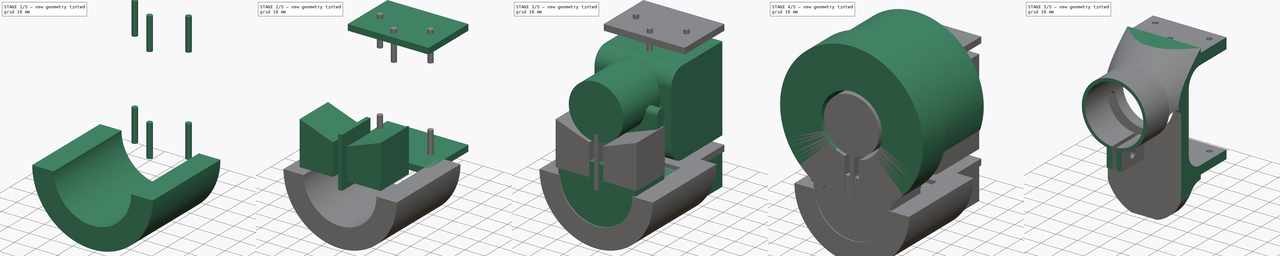
[diagram: build sequence overview — one tinted view per stage of 5, left to right]
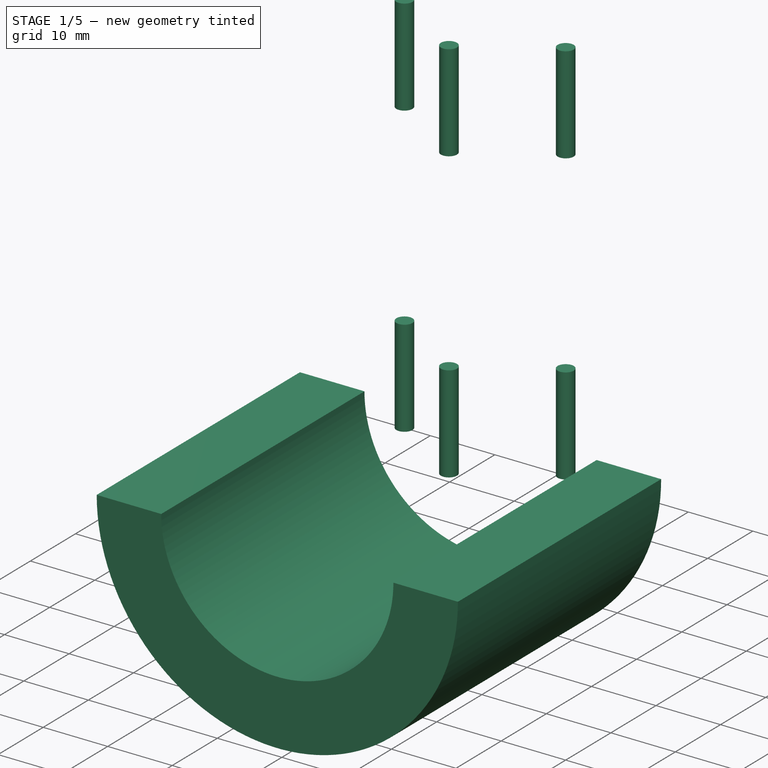
[diagram: stage 1 of 5 — iso view after this stage's code; geometry added in this stage tinted green]
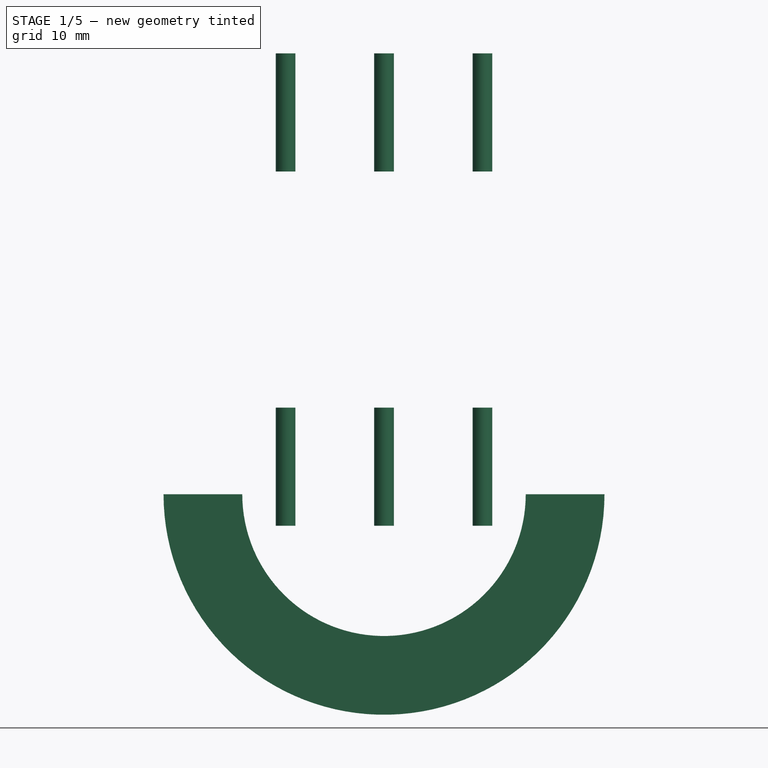
[diagram: stage 1 of 5 — front view after this stage's code; geometry added in this stage tinted green]
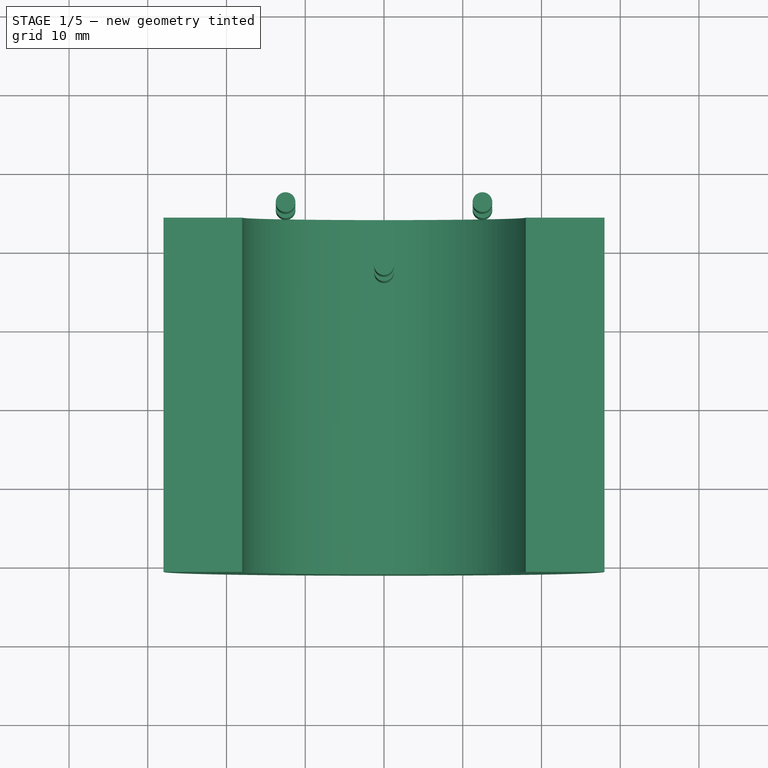
[diagram: stage 1 of 5 — top view after this stage's code; geometry added in this stage tinted green]
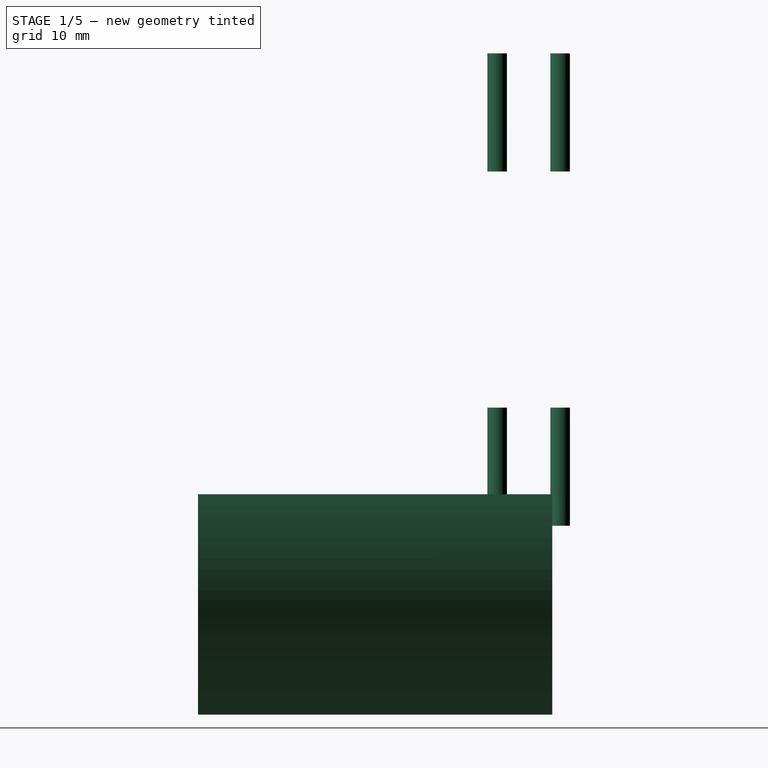
[diagram: stage 1 of 5 — right view after this stage's code; geometry added in this stage tinted green]
FCSTD DOCUMENT  (FreeCAD 0.16R6698 (Git))
Label: body-bracket-light
License: All rights reserved
LicenseURL: http://en.wikipedia.org/wiki/All_rights_reserved
objects: Sketcher::SketchObject×11, Part::Extrusion×7, Part::Sweep×3, Part::MultiFuse×2, Part::Cut×2, Part::Box×1
note: 26 computed .brp shape members not serialized (recipe doc carries the construction recipe); baked Part::Feature solids carry a one-line shape summary decoded from their .brp

FEATURE [Sketcher::SketchObject] Sketch021
  sketch-geometry (6):
    g0: Circle CenterX=-12.5 CenterY=45 CenterZ=0 NormalX=0 NormalY=0 NormalZ=1 Radius=1.25
    g1: Circle CenterX=12.5 CenterY=45 CenterZ=0 NormalX=0 NormalY=0 NormalZ=1 Radius=1.25
    g2: Circle CenterX=0 CenterY=37 CenterZ=0 NormalX=0 NormalY=0 NormalZ=1 Radius=1.25
    g3: LineSegment [constr] StartX=-12.5 StartY=45 StartZ=0 EndX=0 EndY=37 EndZ=0
    g4: LineSegment [constr] StartX=0 StartY=37 StartZ=0 EndX=12.5 EndY=45 EndZ=0
    g5: LineSegment [constr] StartX=12.5 StartY=45 StartZ=0 EndX=-12.5 EndY=45 EndZ=0
  constraints (15):
    c: Radius(g2) = 1.25
    c: PointOnObject(g2,g-2)
    c: Coincident(g3,g0)
    c: Coincident(g3,g2)
    c: Coincident(g3,g4)
    c: Coincident(g4,g1)
    c: Coincident(g4,g5)
    c: Horizontal(g5)
    c: Coincident(g5,g0)
    c: Equal(g3,g4)
    c: DistanceY(g2,g1) = 8
    c: DistanceX(g0,g1) = 25
    c: DistanceY(g-1,g1) = 45
    c: Equal(g0,g2)
    c: Equal(g2,g1)
FEATURE [Part::Extrusion] Extrude005
  Base = -> Sketch021
  Dir = (0,0,15)
  Placement = pos=(0,0,13) rot=(0,0,1;0rad)
  Solid = true
FEATURE [Part::Extrusion] Extrude006
  Base = -> Sketch021
  Dir = (0,0,15)
  Placement = pos=(0,0,58) rot=(0,0,1;0rad)
  Solid = true
FEATURE [Sketcher::SketchObject] Sketch022
  Placement = pos=(0,0,0) rot=(1,0,0;1.5708rad)
  sketch-geometry (2):
    g0: ArcOfCircle CenterX=0 CenterY=17 CenterZ=0 NormalX=0 NormalY=0 NormalZ=1 Radius=18 StartAngle=3.14159 EndAngle=6.28319
    g1: LineSegment [constr] StartX=-18 StartY=17 StartZ=0 EndX=18 EndY=17 EndZ=0
  constraints (7):
    c: PointOnObject(g0,g-2)
    c: Coincident(g1,g0)
    c: Coincident(g1,g0)
    c: Horizontal(g1)
    c: Distance(g1) = 36
    c: DistanceY(g-1,g0) = 17
    c: PointOnObject(g0,g1)
FEATURE [Sketcher::SketchObject] Sketch023
  Placement = pos=(0,0,0) rot=(0.57735,0.57735,0.57735;2.0944rad)
  sketch-geometry (4):
    g0: LineSegment StartX=-1 StartY=-1 StartZ=0 EndX=44 EndY=-1 EndZ=0
    g1: LineSegment StartX=44 StartY=-1 StartZ=0 EndX=44 EndY=-11 EndZ=0
    g2: LineSegment StartX=44 StartY=-11 StartZ=0 EndX=-1 EndY=-11 EndZ=0
    g3: LineSegment StartX=-1 StartY=-11 StartZ=0 EndX=-1 EndY=-1 EndZ=0
  constraints (12):
    c: Coincident(g0,g1)
    c: Coincident(g1,g2)
    c: Coincident(g2,g3)
    c: Coincident(g3,g0)
    c: Horizontal(g0)
    c: Horizontal(g2)
    c: Vertical(g1)
    c: Vertical(g3)
    c: Distance(g1) = 10
    c: Distance(g2) = 45
    c: DistanceX(g0,g-1) = 1
    c: DistanceY(g0,g-1) = 1
FEATURE [Part::Sweep] Sweep002
  Frenet = false
  Sections = -> [Sketch023]
  Solid = true
  Spine = -> Sketch022 [Edge1]
  Transition = 1
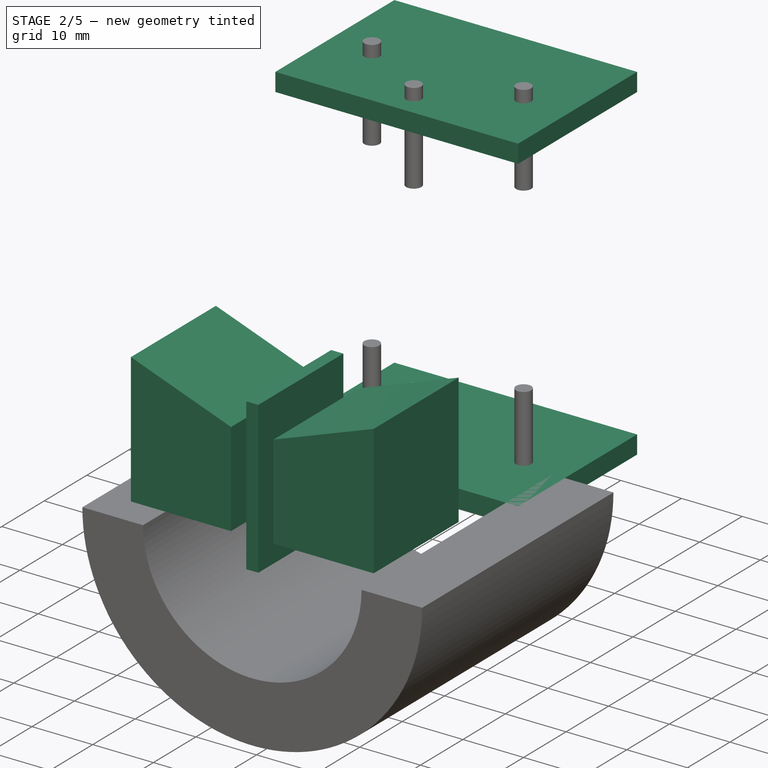
[diagram: stage 2 of 5 — iso view after this stage's code; geometry added in this stage tinted green]
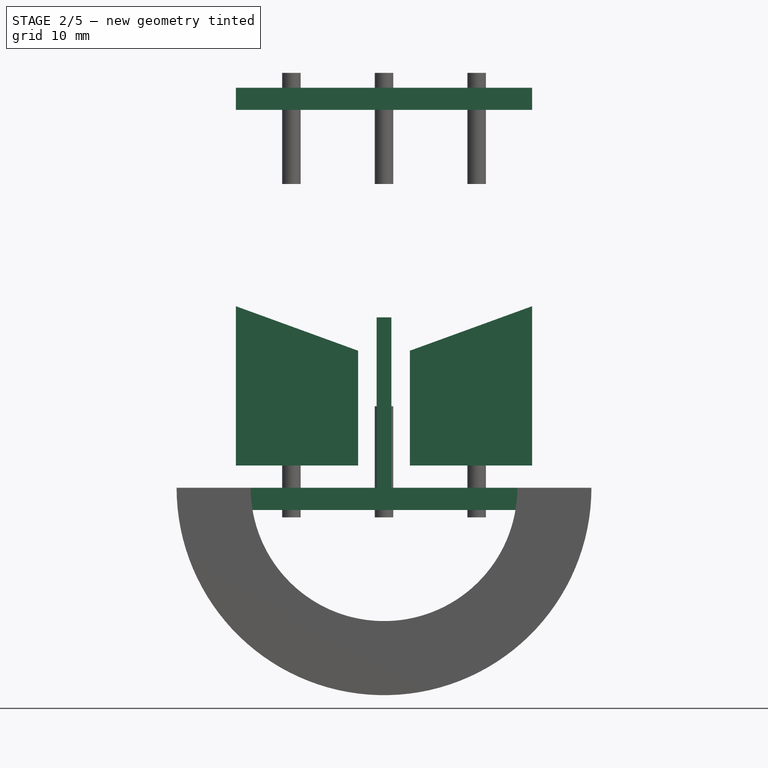
[diagram: stage 2 of 5 — front view after this stage's code; geometry added in this stage tinted green]
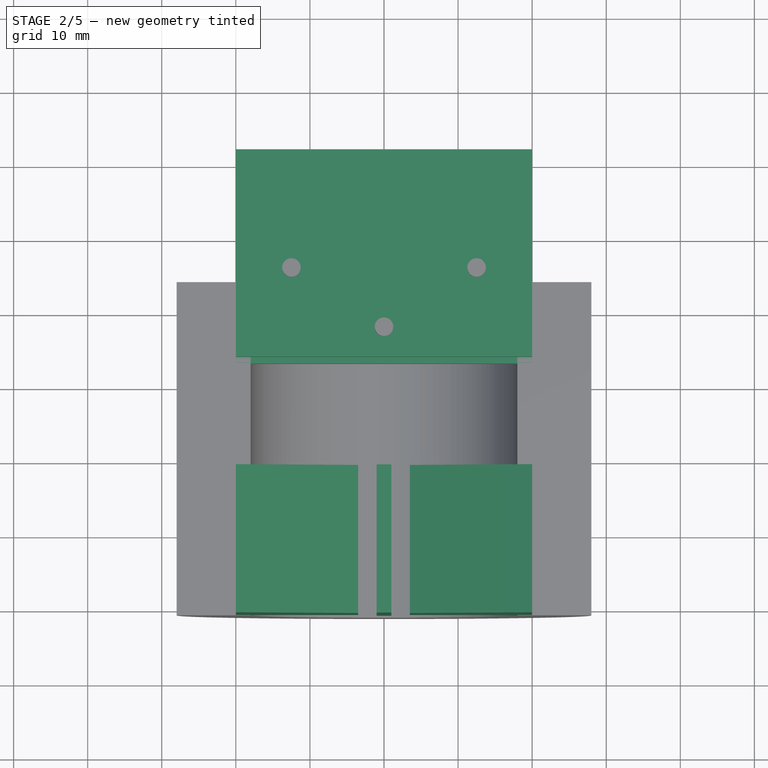
[diagram: stage 2 of 5 — top view after this stage's code; geometry added in this stage tinted green]
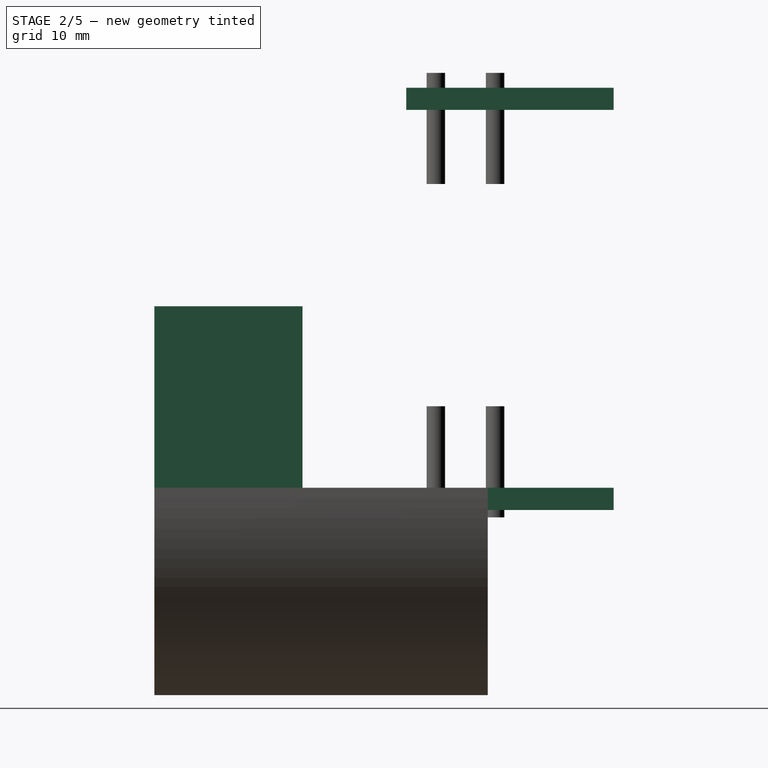
[diagram: stage 2 of 5 — right view after this stage's code; geometry added in this stage tinted green]
FEATURE [Sketcher::SketchObject] Sketch017  label="arc-ext001"
  Placement = pos=(0,0,0) rot=(1,0,0;1.5708rad)
  sketch-geometry (12):
    g0: LineSegment StartX=3.5 StartY=35.5 StartZ=0 EndX=20 EndY=41.5055 EndZ=0
    g1: LineSegment StartX=20 StartY=41.5055 StartZ=0 EndX=20 EndY=20 EndZ=0
    g2: LineSegment StartX=20 StartY=20 StartZ=0 EndX=3.5 EndY=20 EndZ=0
    g3: LineSegment StartX=3.5 StartY=20 StartZ=0 EndX=3.5 EndY=35.5 EndZ=0
    g4: LineSegment StartX=-3.5 StartY=35.5 StartZ=0 EndX=-20 EndY=41.5055 EndZ=0
    g5: LineSegment StartX=-20 StartY=41.5055 StartZ=0 EndX=-20 EndY=20 EndZ=0
    g6: LineSegment StartX=-20 StartY=20 StartZ=0 EndX=-3.5 EndY=20 EndZ=0
    g7: LineSegment StartX=-3.5 StartY=20 StartZ=0 EndX=-3.5 EndY=35.5 EndZ=0
    g8: LineSegment StartX=-1 StartY=40 StartZ=0 EndX=1 EndY=40 EndZ=0
    g9: LineSegment StartX=1 StartY=40 StartZ=0 EndX=1 EndY=15 EndZ=0
    g10: LineSegment StartX=1 StartY=15 StartZ=0 EndX=-1 EndY=15 EndZ=0
    g11: LineSegment StartX=-1 StartY=15 StartZ=0 EndX=-1 EndY=40 EndZ=0
  constraints (35):
    c: Coincident(g0,g1)
    c: Coincident(g1,g2)
    c: Coincident(g2,g3)
    c: Horizontal(g2)
    c: Vertical(g1)
    c: Vertical(g3)
    c: DistanceX(g-1,g2) = 3.5
    c: DistanceX(g-1,g1) = 20
    c: DistanceY(g1) = 20
    c: Coincident(g4,g5)
    c: Coincident(g5,g6)
    c: Coincident(g6,g7)
    c: Horizontal(g6)
    c: Vertical(g5)
    c: Vertical(g7)
    c: Symmetric(g2,g6,g-2)
    c: Equal(g6,g2)
    c: Equal(g5,g1)
    c: Coincident(g8,g9)
    c: Coincident(g9,g10)
    c: Coincident(g10,g11)
    c: Coincident(g11,g8)
    c: Horizontal(g8)
    c: Horizontal(g10)
    c: Vertical(g9)
    c: Vertical(g11)
    c: Symmetric(g9,g10,g-2)
    c: DistanceX(g9,g2) = 2.5
    c: DistanceY(g-1,g9) = 15
    c: DistanceY(g-1,g8) = 40
    c: Coincident(g0,g3)
    c: Coincident(g4,g7)
    c: Angle(g3,g0) = 1.91986
    c: DistanceY(g-1,g0) = 35.5
    c: Equal(g4,g0)
FEATURE [Part::Extrusion] Extrude002  label="arc-ext"
  Base = -> Sketch017
  Dir = (0,20,0)
  Placement = pos=(0,-1,0) rot=(0,0,1;0rad)
  Solid = true
FEATURE [Sketcher::SketchObject] Sketch020
  sketch-geometry (4):
    g0: LineSegment StartX=-20 StartY=61 StartZ=0 EndX=20 EndY=61 EndZ=0
    g1: LineSegment StartX=20 StartY=61 StartZ=0 EndX=20 EndY=33 EndZ=0
    g2: LineSegment StartX=20 StartY=33 StartZ=0 EndX=-20 EndY=33 EndZ=0
    g3: LineSegment StartX=-20 StartY=33 StartZ=0 EndX=-20 EndY=61 EndZ=0
  constraints (12):
    c: Coincident(g0,g1)
    c: Coincident(g1,g2)
    c: Coincident(g2,g3)
    c: Coincident(g3,g0)
    c: Horizontal(g0)
    c: Horizontal(g2)
    c: Vertical(g1)
    c: Vertical(g3)
    c: DistanceY(g-1,g1) = 33
    c: Symmetric(g1,g2,g-2)
    c: DistanceY(g-1,g0) = 61
    c: DistanceX(g0,g0) = 40
FEATURE [Part::Extrusion] Extrude003
  Base = -> Sketch020
  Dir = (0,0,3)
  Placement = pos=(0,0,68) rot=(0,0,1;0rad)
  Solid = true
FEATURE [Part::Extrusion] Extrude004
  Base = -> Sketch020
  Dir = (0,0,3)
  Placement = pos=(0,0,14) rot=(0,0,1;0rad)
  Solid = true
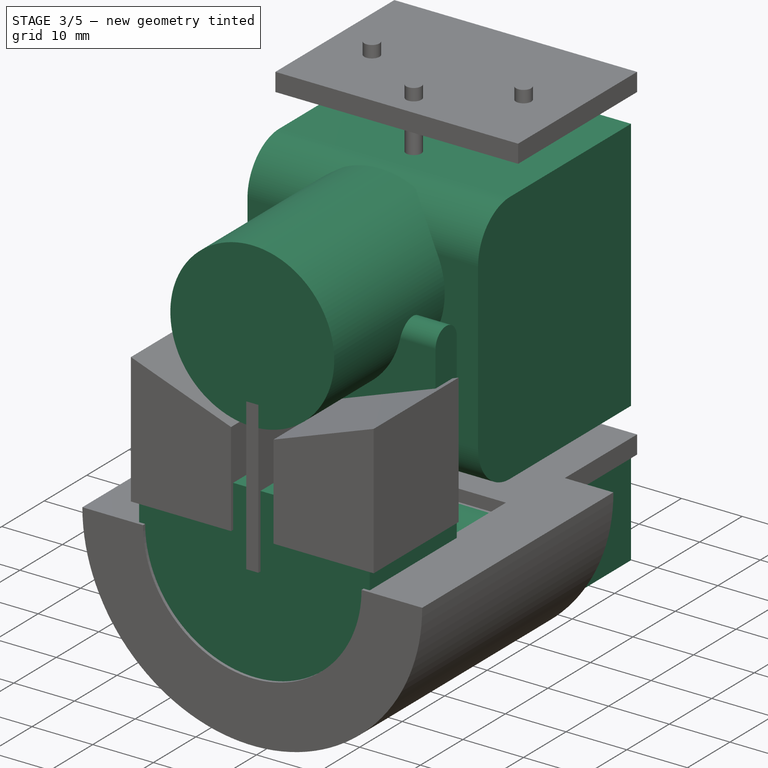
[diagram: stage 3 of 5 — iso view after this stage's code; geometry added in this stage tinted green]
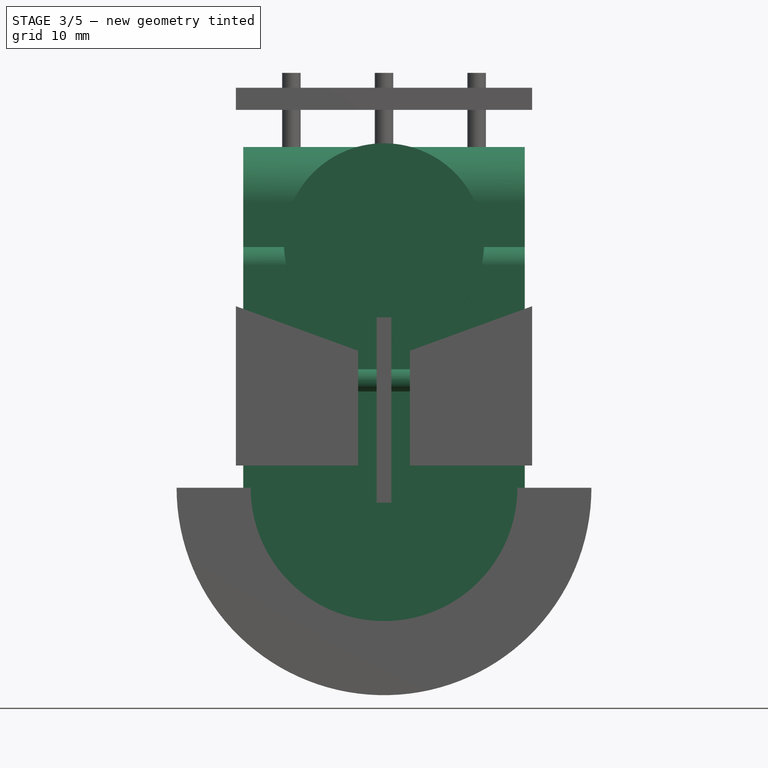
[diagram: stage 3 of 5 — front view after this stage's code; geometry added in this stage tinted green]
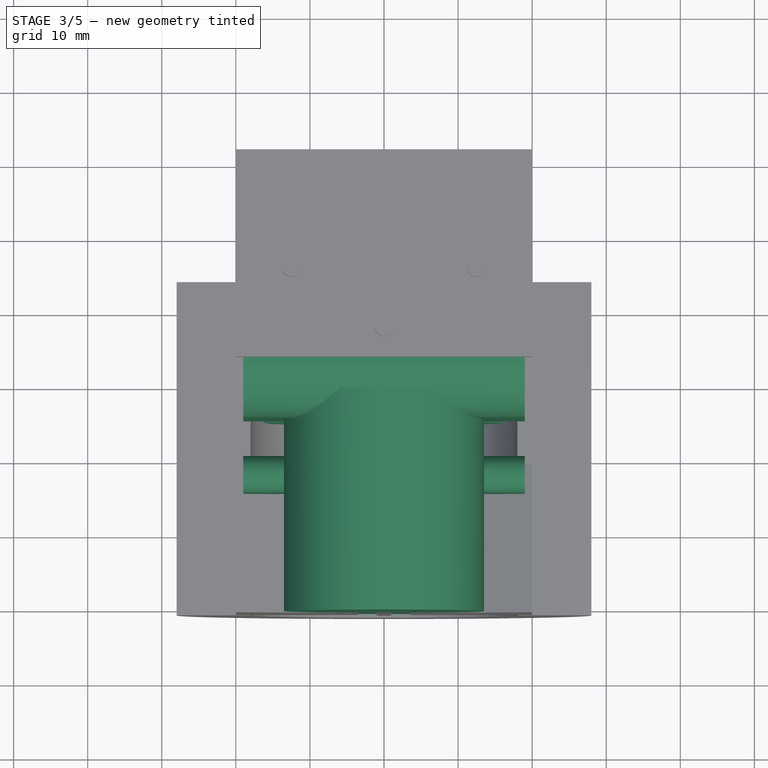
[diagram: stage 3 of 5 — top view after this stage's code; geometry added in this stage tinted green]
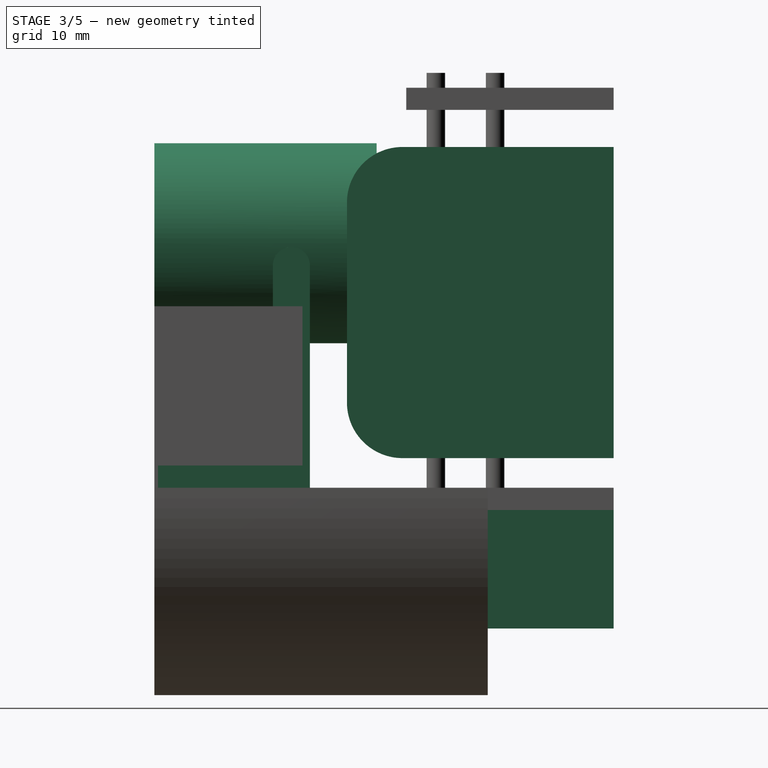
[diagram: stage 3 of 5 — right view after this stage's code; geometry added in this stage tinted green]
FEATURE [Sketcher::SketchObject] Sketch  label="side-cut"
  Placement = pos=(0,0,0) rot=(0.57735,0.57735,0.57735;2.0944rad)
  sketch-geometry (21):
    g0: LineSegment StartX=61 StartY=63 StartZ=0 EndX=32.5 EndY=63 EndZ=0
    g1: LineSegment StartX=25 StartY=55.5 StartZ=0 EndX=25 EndY=28.5 EndZ=0
    g2: LineSegment StartX=32.5 StartY=21 StartZ=0 EndX=61 EndY=21 EndZ=0
    g3: LineSegment StartX=61 StartY=21 StartZ=0 EndX=61 EndY=63 EndZ=0
    g4: LineSegment StartX=61 StartY=15 StartZ=0 EndX=32.5 EndY=15 EndZ=0
    g5: LineSegment StartX=25 StartY=7.5 StartZ=0 EndX=25 EndY=-2 EndZ=0
    g6: LineSegment StartX=25 StartY=-2 StartZ=0 EndX=61 EndY=-2 EndZ=0
    g7: LineSegment StartX=61 StartY=-2 StartZ=0 EndX=61 EndY=15 EndZ=0
    g8: ArcOfCircle CenterX=32.5 CenterY=7.5 CenterZ=0 NormalX=0 NormalY=0 NormalZ=1 Radius=7.5 StartAngle=1.5708 EndAngle=3.14159
    g9: ArcOfCircle CenterX=32.5 CenterY=55.5 CenterZ=0 NormalX=0 NormalY=0 NormalZ=1 Radius=7.5 StartAngle=1.5708 EndAngle=3.14159
    g10: ArcOfCircle CenterX=32.5 CenterY=28.5 CenterZ=0 NormalX=0 NormalY=0 NormalZ=1 Radius=7.5 StartAngle=3.14159 EndAngle=4.71239
    g11: LineSegment [constr] StartX=15 StartY=47 StartZ=0 EndX=20 EndY=47 EndZ=0
    g12: LineSegment StartX=20 StartY=47 StartZ=0 EndX=20 EndY=-2 EndZ=0
    g13: LineSegment StartX=20 StartY=-2 StartZ=0 EndX=-0.5 EndY=-2 EndZ=0
    g14: LineSegment StartX=-0.5 StartY=-2 StartZ=0 EndX=-0.5 EndY=27 EndZ=0
    g15: LineSegment StartX=-0.5 StartY=27 StartZ=0 EndX=15 EndY=27 EndZ=0
    g16: LineSegment StartX=15 StartY=27 StartZ=0 EndX=15 EndY=47 EndZ=0
    g17: ArcOfCircle CenterX=17.5 CenterY=47 CenterZ=0 NormalX=0 NormalY=0 NormalZ=1 Radius=2.5 StartAngle=0 EndAngle=3.14159
    g18: Circle CenterX=7.25 CenterY=31.5 CenterZ=0 NormalX=0 NormalY=0 NormalZ=1 Radius=1.5
    g19: LineSegment [constr] StartX=7.25 StartY=31.5 StartZ=0 EndX=15 EndY=27 EndZ=0
    g20: LineSegment [constr] StartX=7.25 StartY=31.5 StartZ=0 EndX=-0.5 EndY=27 EndZ=0
  constraints (58):
    c: Coincident(g2,g3)
    c: Coincident(g3,g0)
    c: Horizontal(g0)
    c: Horizontal(g2)
    c: Vertical(g1)
    c: Vertical(g3)
    c: Coincident(g5,g6)
    c: Coincident(g6,g7)
    c: Coincident(g7,g4)
    c: Horizontal(g4)
    c: Horizontal(g6)
    c: Vertical(g5)
    c: Vertical(g7)
    c: Tangent(g4,g8) = -1.5708
    c: Tangent(g5,g8) = -1.5708
    c: Tangent(g0,g9) = -1.5708
    c: Tangent(g1,g9) = -1.5708
    c: Tangent(g1,g10) = -1.5708
    c: Tangent(g2,g10) = -1.5708
    c: Radius(g8) = 7.5
    c: Equal(g8,g10)
    c: Equal(g10,g9)
    c: DistanceY(g-1,g4) = 15
    c: PointOnObject(g1,g5)
    c: Equal(g2,g4)
    c: DistanceX(g-1,g6) = 61
    c: DistanceY(g-1,g0) = 63
    c: DistanceY(g-1,g2) = 21
    c: DistanceY(g6,g-1) = 2
    c: Coincident(g11,g12)
    c: Coincident(g12,g13)
    c: Horizontal(g11)
    c: Horizontal(g13)
    c: Vertical(g12)
    c: PointOnObject(g12,g6)
    c: Vertical(g14)
    c: Coincident(g14,g15)
    c: Horizontal(g15)
    c: Coincident(g15,g16)
    c: Vertical(g16)
    c: DistanceX(g-1,g11) = 15
    c: Coincident(g16,g11)
    c: DistanceX(g13,g-1) = 0.5
    c: Coincident(g14,g13)
    c: DistanceY(g-1,g15) = 27
    c: DistanceY(g-1,g11) = 47
    c: PointOnObject(g17,g11)
    c: Coincident(g17,g11)
    c: Coincident(g17,g11)
    c: Radius(g18) = 1.5
    c: DistanceY(g14,g18) = 4.5
    c: Coincident(g19,g18)
    c: Coincident(g19,g15)
    c: Coincident(g20,g18)
    c: Coincident(g20,g14)
    c: Equal(g20,g19)
    c: Radius(g17) = 2.5
    c: DistanceX(g-1,g5) = 25
FEATURE [Part::Extrusion] Extrude  label="Extrude-side-cut"
  Base = -> Sketch
  Dir = (38,0,0)
  Placement = pos=(-19,0,0) rot=(0,0,1;0rad)
  Solid = true
FEATURE [Sketcher::SketchObject] Sketch016  label="tube-hole"
  Placement = pos=(0,0,0) rot=(1,0,0;1.5708rad)
  sketch-geometry (1):
    g0: Circle CenterX=0 CenterY=50 CenterZ=0 NormalX=0 NormalY=0 NormalZ=1 Radius=13.5
  constraints (3):
    c: PointOnObject(g0,g-2)
    c: Radius(g0) = 13.5
    c: DistanceY(g-1,g0) = 50
FEATURE [Part::Extrusion] Extrude001  label="Extrude-tube-hole"
  Base = -> Sketch016
  Dir = (0,30,0)
  Placement = pos=(0,-1,0) rot=(0,0,1;0rad)
  Solid = true
FEATURE [Part::MultiFuse] Fusion001
  Shapes = -> [Extrude,Extrude001,Extrude002,Extrude003,Extrude004,Extrude005,Extrude006,Sweep002]
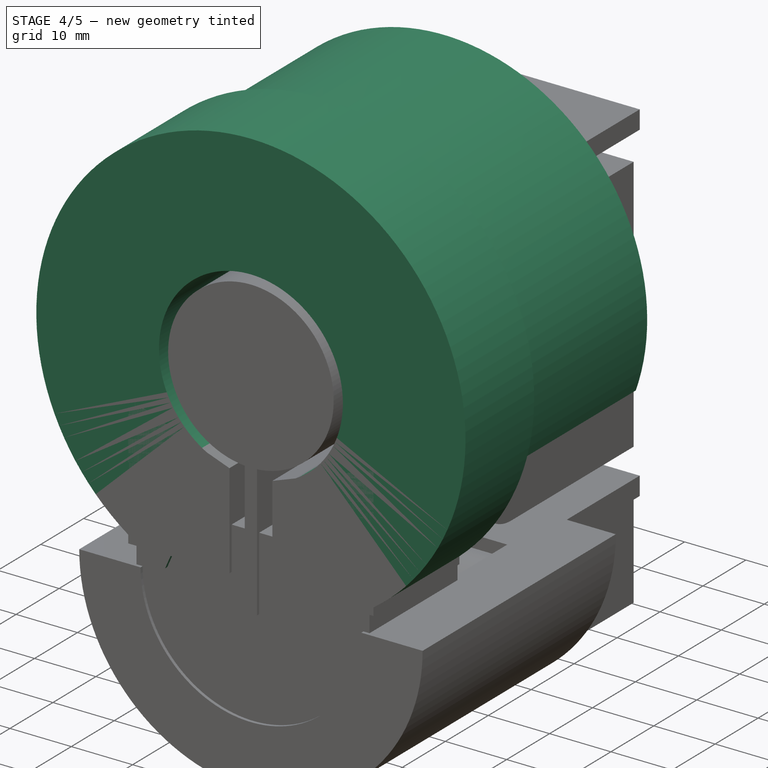
[diagram: stage 4 of 5 — iso view after this stage's code; geometry added in this stage tinted green]
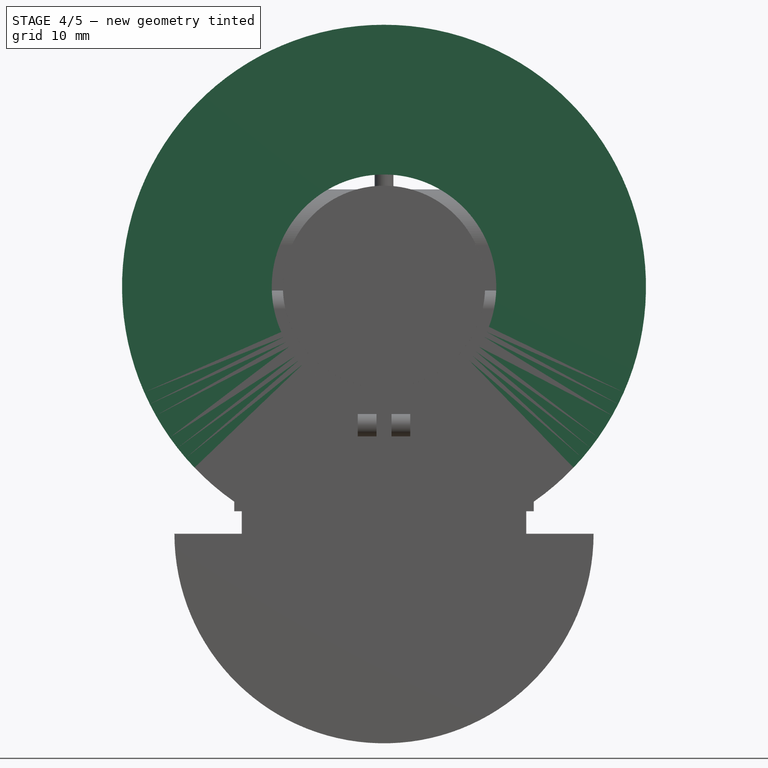
[diagram: stage 4 of 5 — front view after this stage's code; geometry added in this stage tinted green]
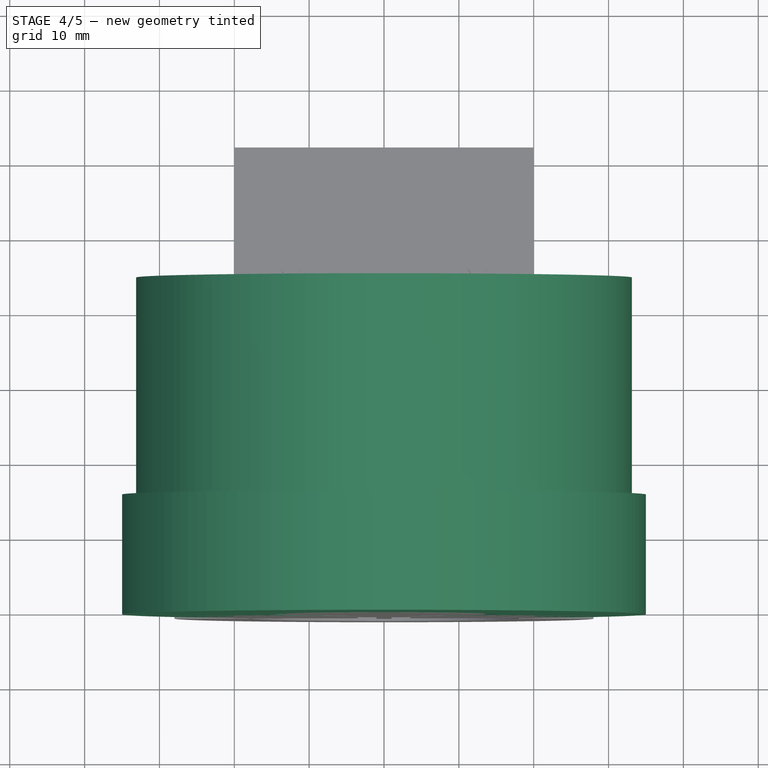
[diagram: stage 4 of 5 — top view after this stage's code; geometry added in this stage tinted green]
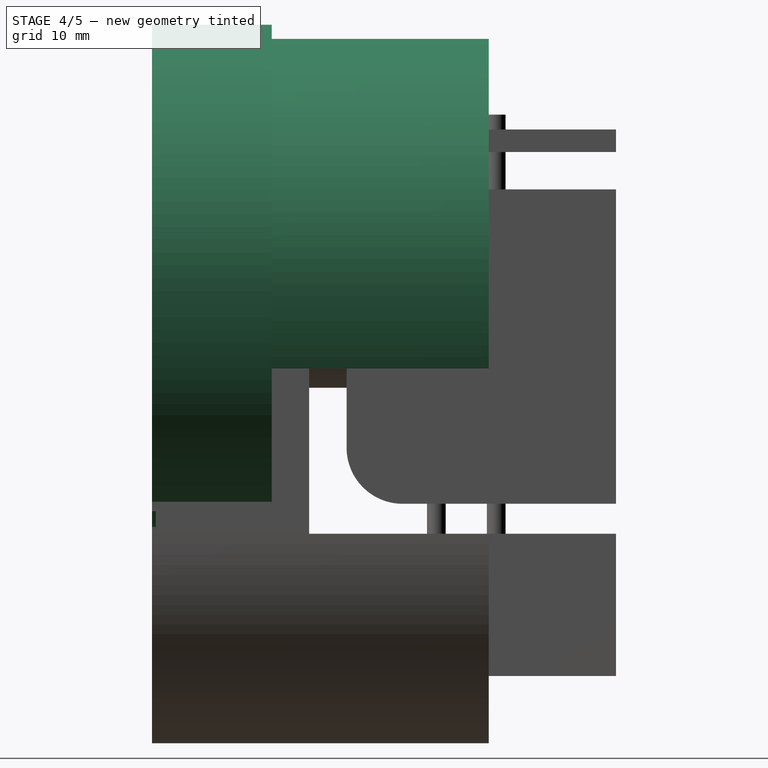
[diagram: stage 4 of 5 — right view after this stage's code; geometry added in this stage tinted green]
FEATURE [Sketcher::SketchObject] Sketch014  label="outer-tube-cut"
  Placement = pos=(0,-1,0) rot=(0.57735,0.57735,0.57735;2.0944rad)
  sketch-geometry (4):
    g0: LineSegment StartX=16 StartY=65 StartZ=0 EndX=0 EndY=65 EndZ=0
    g1: LineSegment StartX=0 StartY=65 StartZ=0 EndX=0 EndY=85 EndZ=0
    g2: LineSegment StartX=0 StartY=85 StartZ=0 EndX=16 EndY=85 EndZ=0
    g3: LineSegment StartX=16 StartY=65 StartZ=0 EndX=16 EndY=85 EndZ=0
  constraints (13):
    c: Coincident(g0,g1)
    c: Horizontal(g0)
    c: Vertical(g1)
    c: DistanceX(g0,g0) = 16
    c: DistanceY(g-1,g0) = 65
    c: PointOnObject(g0,g-2)
    c: PointOnObject(g2,g-2)
    c: Horizontal(g2)
    c: DistanceY(g0,g2) = 20
    c: Coincident(g1,g2)
    c: Coincident(g3,g0)
    c: Vertical(g3)
    c: Coincident(g2,g3)
FEATURE [Sketcher::SketchObject] Sketch015  label="outer-tube-cut-path"
  Placement = pos=(0,0,0) rot=(1,0,0;1.5708rad)
  sketch-geometry (3):
    g0: ArcOfCircle CenterX=0 CenterY=50 CenterZ=0 NormalX=0 NormalY=0 NormalZ=1 Radius=10 StartAngle=5.12391 EndAngle=10.5841
    g1: LineSegment [constr] StartX=-4 StartY=40.8348 StartZ=0 EndX=4 EndY=40.8348 EndZ=0
    g2: GeomPoint [constr] X=0 Y=50 Z=0
  constraints (8):
    c: Radius(g0) = 10
    c: Coincident(g1,g0)
    c: Horizontal(g1)
    c: Distance(g1) = 8
    c: Coincident(g0,g1)
    c: DistanceY(g-1,g2) = 50
    c: PointOnObject(g2,g-2)
    c: Coincident(g0,g2)
FEATURE [Part::Sweep] Sweep
  Frenet = false
  Sections = -> [Sketch014]
  Solid = true
  Spine = -> Sketch015 [Edge1]
  Transition = 1
FEATURE [Sketcher::SketchObject] Sketch018  label="body-round-cut"
  Placement = pos=(0,-1,0) rot=(0.57735,0.57735,0.57735;2.0944rad)
  sketch-geometry (3):
    g0: LineSegment StartX=16 StartY=65 StartZ=0 EndX=16 EndY=83.1212 EndZ=0
    g1: LineSegment StartX=16 StartY=65 StartZ=0 EndX=45 EndY=83.1212 EndZ=0
    g2: LineSegment StartX=16 StartY=83.1212 StartZ=0 EndX=45 EndY=83.1212 EndZ=0
  constraints (9):
    c: Coincident(g1,g0)
    c: Coincident(g2,g0)
    c: Coincident(g2,g1)
    c: Angle(g1,g0) = 1.01229
    c: DistanceY(g-1,g0) = 65
    c: Vertical(g0)
    c: DistanceX(g-1,g0) = 16
    c: Horizontal(g2)
    c: DistanceX(g-1,g1) = 45
FEATURE [Sketcher::SketchObject] Sketch019  label="body-round-cut-path"
  Placement = pos=(0,0,0) rot=(1,0,0;1.5708rad)
  sketch-geometry (3):
    g0: ArcOfCircle CenterX=0 CenterY=50 CenterZ=0 NormalX=0 NormalY=0 NormalZ=1 Radius=10 StartAngle=5.94688 EndAngle=9.76108
    g1: LineSegment [constr] StartX=-9.43981 StartY=46.7 StartZ=0 EndX=9.43981 EndY=46.7 EndZ=0
    g2: GeomPoint [constr] X=0 Y=50 Z=0
  constraints (8):
    c: Radius(g0) = 10
    c: Coincident(g1,g0)
    c: Horizontal(g1)
    c: Coincident(g0,g1)
    c: DistanceY(g-1,g2) = 50
    c: PointOnObject(g2,g-2)
    c: Coincident(g0,g2)
    c: DistanceY(g0,g0) = 3.3
FEATURE [Part::Sweep] Sweep001
  Frenet = false
  Sections = -> [Sketch018]
  Solid = true
  Spine = -> Sketch019 [Edge1]
  Transition = 1
FEATURE [Part::MultiFuse] Fusion
  Shapes = -> [Sweep001,Sweep]
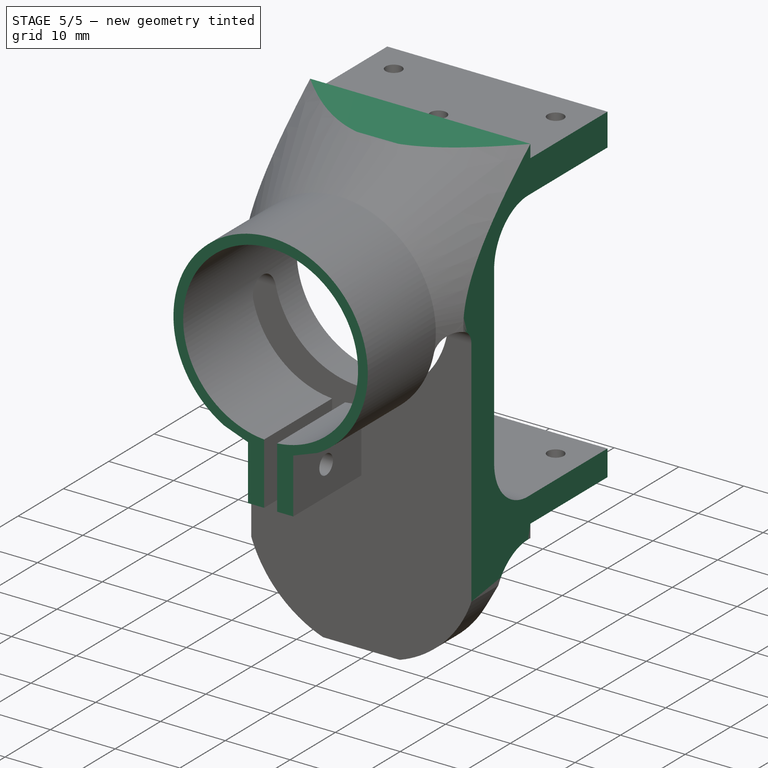
[diagram: stage 5 of 5 — iso view after this stage's code; geometry added in this stage tinted green]
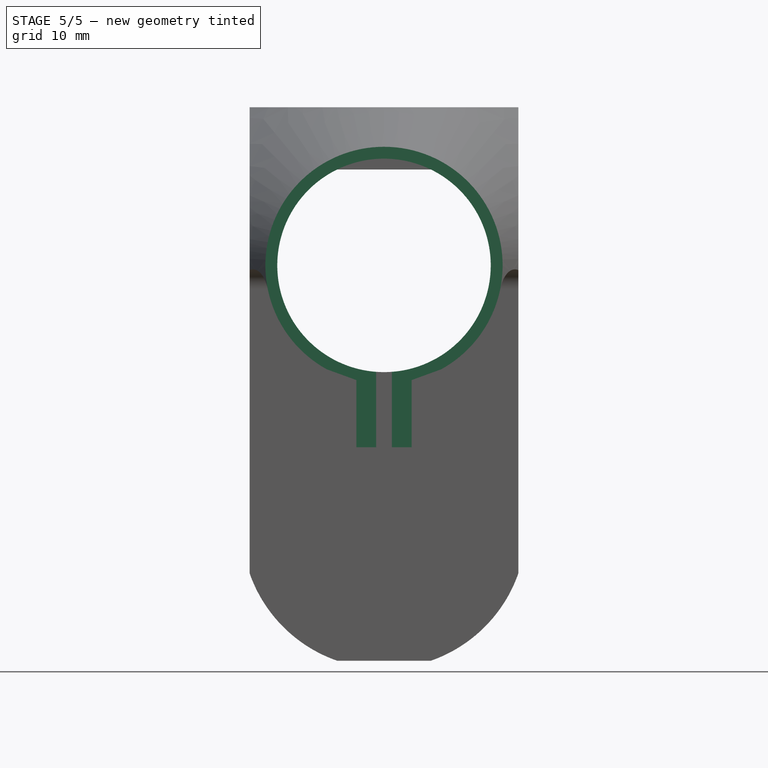
[diagram: stage 5 of 5 — front view after this stage's code; geometry added in this stage tinted green]
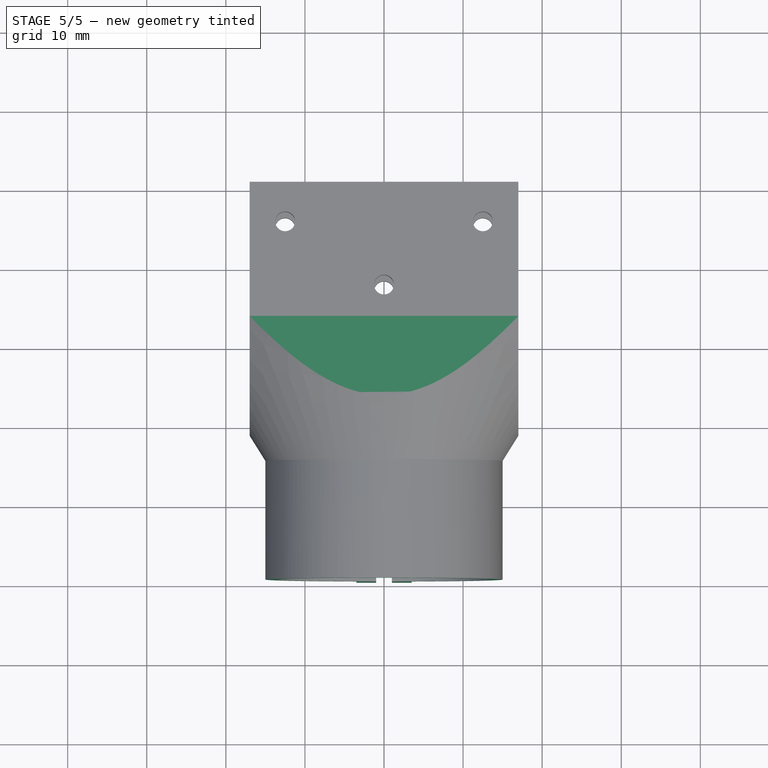
[diagram: stage 5 of 5 — top view after this stage's code; geometry added in this stage tinted green]
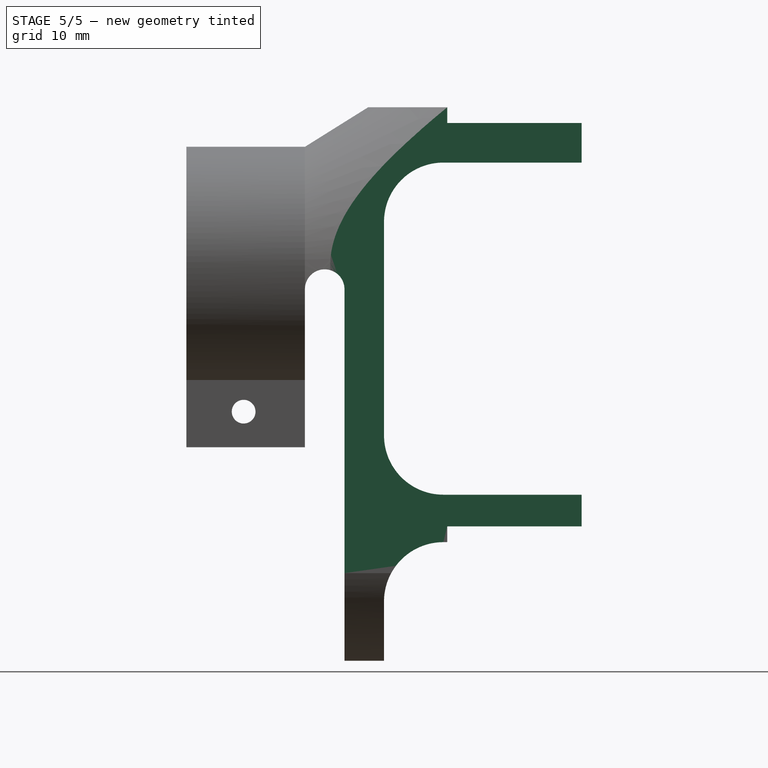
[diagram: stage 5 of 5 — right view after this stage's code; geometry added in this stage tinted green]
FEATURE [Part::Box] Box  label="Cube"
  Height = 70
  Length = 34
  Placement = pos=(-17,0,0) rot=(0,0,1;0rad)
  Width = 50
FEATURE [Part::Cut] Cut
  Base = -> Box
  Tool = -> Fusion
FEATURE [Part::Cut] Cut001
  Base = -> Cut
  Tool = -> Fusion001
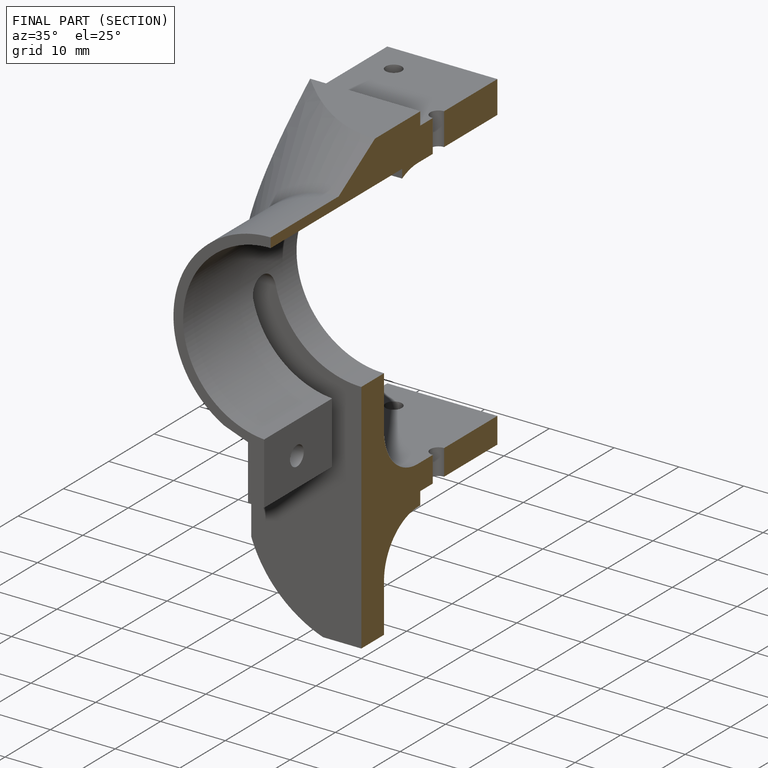
[diagram: finished part — half-section view (interior)]
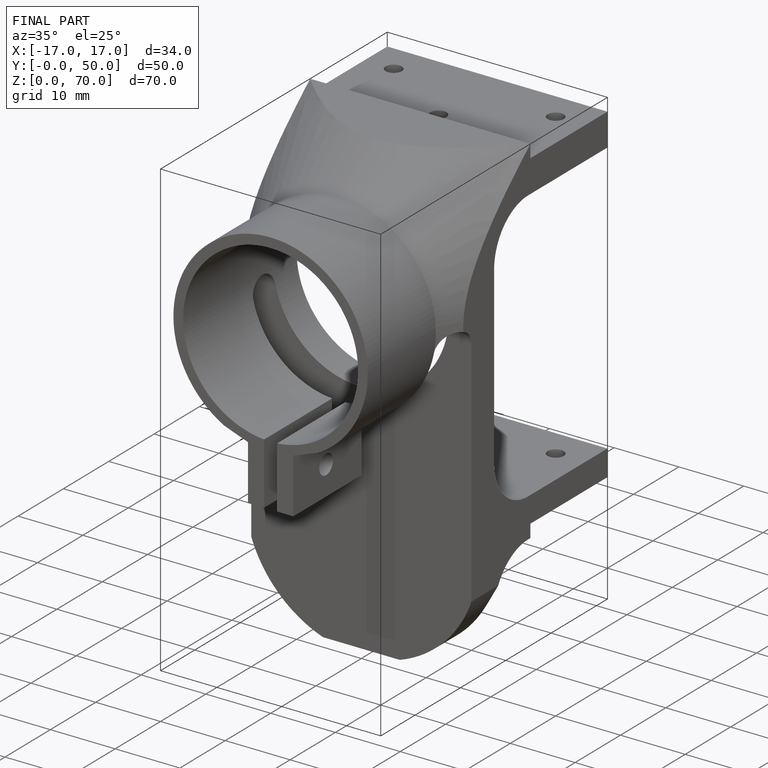
[diagram: finished part — iso view with bounding-box wireframe]
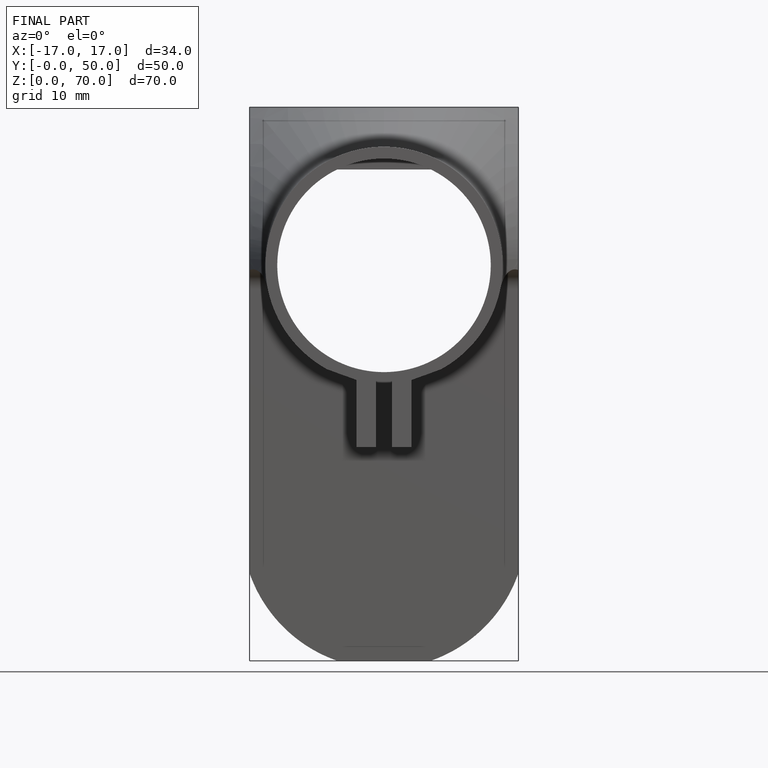
[diagram: finished part — front view with bounding-box wireframe]
